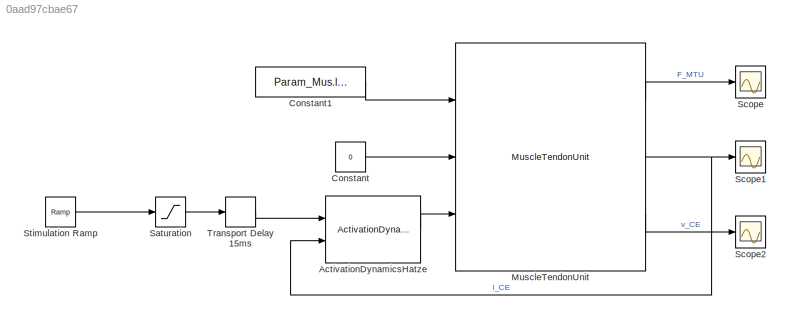
MODEL slx_0aad97cbae67
KIND model
CONFIG AbsTol = auto
CONFIG EnableMultiTasking = on
CONFIG FixedStep = auto
CONFIG MaxStep = auto
CONFIG MinStep = auto
CONFIG RelTol = 1e-3
CONFIG SampleTimeConstraint = Unconstrained
CONFIG Solver = VariableStepAuto
CONFIG SolverName = VariableStepAuto
CONFIG StartTime = 0.0
CONFIG StopTime = 10.0
BLOCK [Reference] ActivationDynamicsHatze  REF=Library_mtu_simulink/ActivationDynamicsHatze
  Ports = [2, 1]
  SourceBlock = Library_mtu_simulink/ActivationDynamicsHatze
  SourceType = Activation Dynamics
BLOCK [Constant] Constant
  Value = 0
BLOCK [Constant] Constant1
  Value = Param_Mus.l_MTC_init
BLOCK [Reference] MuscleTendonUnit  REF=Library_mtu_simulink/MuscleTendonUnit
  Ports = [3, 3]
  SourceBlock = Library_mtu_simulink/MuscleTendonUnit
  SourceType = Muscle Tendon Complex Model
BLOCK [Saturate] Saturation
  InputPortMap = u0
  LowerLimit = 0.001
  Ports = [1, 1]
  UpperLimit = 1
BLOCK [Scope] Scope
  Floating = off
  NumInputPorts = 1
  Ports = [1]
  ScopeSpecificationString = Simulink.scopes.TimeScopeBlockCfg('CurrentConfiguration', extmgr.ConfigurationSet(extmgr.Configuration('Core','General UI',true),extmgr.Configuration('Core','Source UI',true),extmgr.Configuration('Sources','WiredSimulink',true,'DataLoggingLimitDataPoints',true,'DataLoggingSaveFormat','Array','DataLoggingDecimation','1','DataLoggingDecimateData',true),extmgr.Configuration('Visuals','Time Domain',tr...<+1487ch>
BLOCK [Scope] Scope1
  Floating = off
  NumInputPorts = 1
  Ports = [1]
  ScopeSpecificationString = C++SS(StrPVP('SaveName','ScopeData'),StrPVP('SaveName','ScopeData1'),StrPVP('LimitDataPoints','on'),StrPVP('DataFormat','Array'),StrPVP('Decimation','1'),StrPVP('BlockParamSampleInput','off'))
BLOCK [Scope] Scope2
  Floating = off
  NumInputPorts = 1
  Ports = [1]
  ScopeSpecificationString = Simulink.scopes.TimeScopeBlockCfg('CurrentConfiguration', extmgr.ConfigurationSet(extmgr.Configuration('Core','General UI',true),extmgr.Configuration('Core','Source UI',true),extmgr.Configuration('Sources','WiredSimulink',true,'DataLoggingVariableName','ScopeData1','DataLoggingLimitDataPoints',true,'DataLoggingSaveFormat','Array','DataLoggingDecimation','1','DataLoggingDecimateData',true),extmgr.C...<+165ch>
BLOCK [Reference] Stimulation Ramp  REF=simulink/Sources/Ramp
  Ports = [0, 1]
  SourceBlock = simulink/Sources/Ramp
  SourceProductBaseCode = SL
  SourceProductName = Simulink
  SourceType = Ramp
BLOCK [TransportDelay] Transport Delay 15ms
  DelayTime = 0.015
  InitialOutput = Param_Mus.ActDyn.u_init
  Ports = [1, 1]
LINE ActivationDynamicsHatze:1 -> MuscleTendonUnit:3
LINE Constant1:1 -> MuscleTendonUnit:1
LINE Constant:1 -> MuscleTendonUnit:2
LINE MuscleTendonUnit:1 -> Scope:1
NET MuscleTendonUnit:2 -> ActivationDynamicsHatze:2, Scope1:1
LINE MuscleTendonUnit:3 -> Scope2:1
LINE Saturation:1 -> Transport Delay 15ms:1
LINE Stimulation Ramp:1 -> Saturation:1
LINE Transport Delay 15ms:1 -> ActivationDynamicsHatze:1
note: NET lines group one-source signal fan-out (src -> all destinations, sorted); 1:1 wires keep LINE
